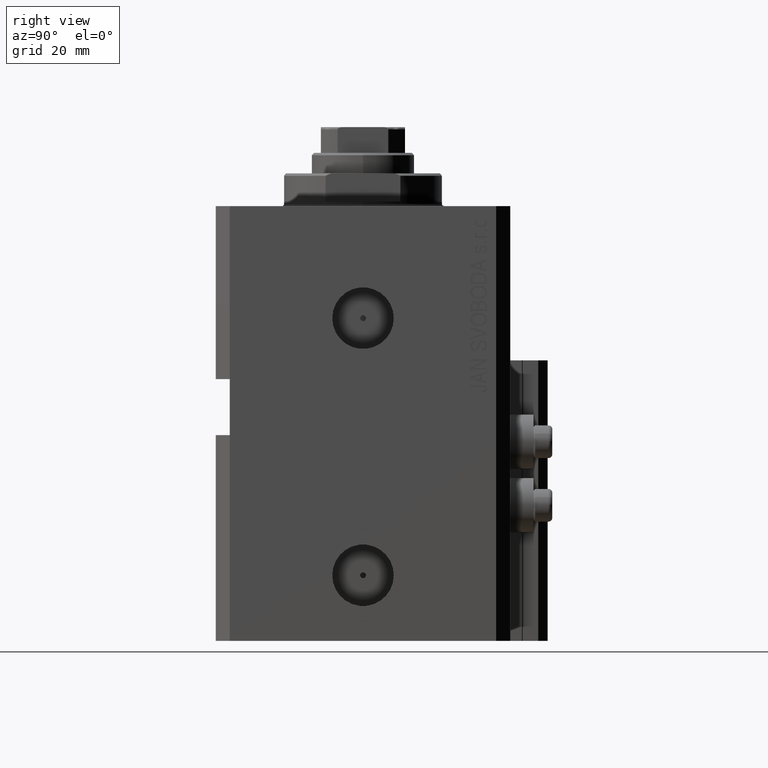
[diagram: clean part render]
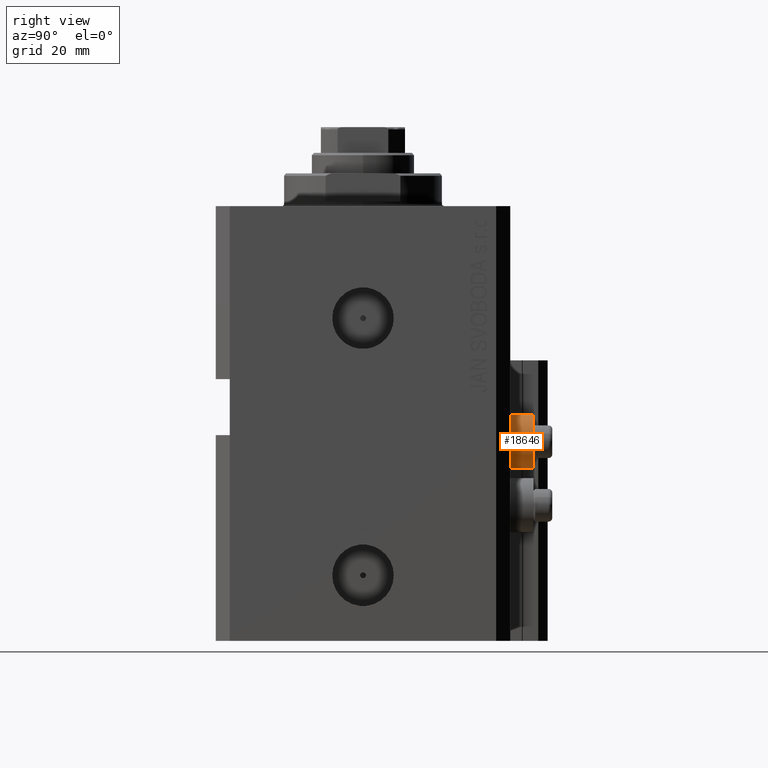
[diagram: same view with one face highlighted and labeled with its STEP entity id]
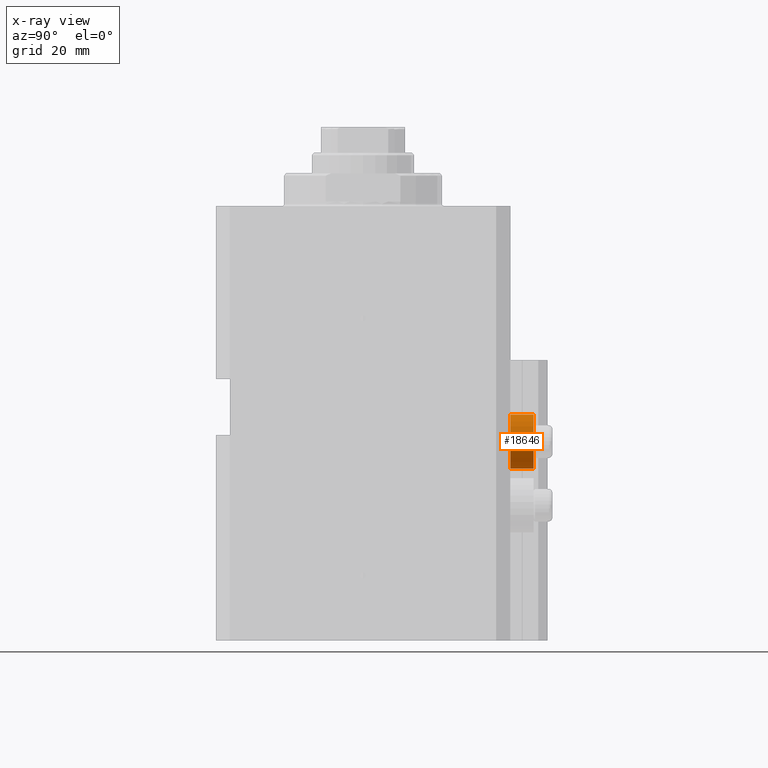
[diagram: x-ray of the same camera — body ghosted, the highlighted face saturated]
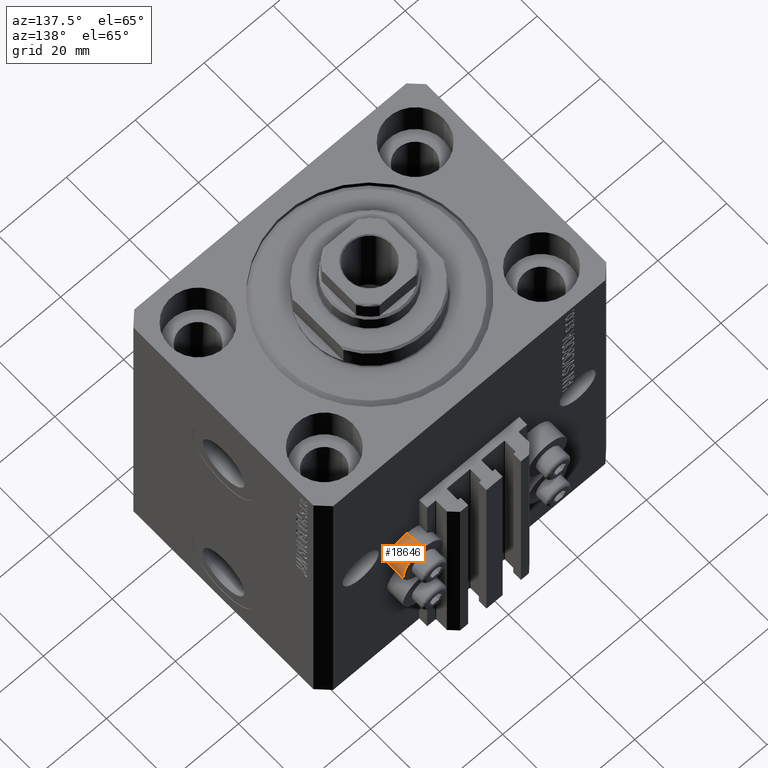
[diagram: same view with one face highlighted and labeled with its STEP entity id]
A machine part, right view. The second image highlights one B-rep face of the part: STEP entity #18646.
The next image is the same camera in x-ray: the body ghosted, the highlighted face saturated — about 0% of this face is hidden behind the body in this view.
A second angle (auxiliary view) of the same face is appended — the face is thin or edge-on in the first view.
In plain terms, the highlighted cylindrical surface (edge-blend (fillet) strip) has radius 5.8 mm, axis along (0, 1, 0).
Its self-contained STEP definition (entity closure, byte-faithful):
#86 = CYLINDRICAL_SURFACE ( 'NONE', #12255, 5.799999999999999822 ) ;
#891 = EDGE_CURVE ( 'NONE', #11539, #2558, #31812, .T. ) ;
#2558 = VERTEX_POINT ( 'NONE', #46730 ) ;
#5361 = DIRECTION ( 'NONE',  ( 0.000000000000000000, 0.000000000000000000, 1.000000000000000000 ) ) ;
#10110 = DIRECTION ( 'NONE',  ( 0.000000000000000000, 1.000000000000000000, 0.000000000000000000 ) ) ;
#10917 = LINE ( 'NONE', #24930, #18818 ) ;
#11539 = VERTEX_POINT ( 'NONE', #45692 ) ;
#11607 = ORIENTED_EDGE ( 'NONE', *, *, #17974, .F. ) ;
#12255 = AXIS2_PLACEMENT_3D ( 'NONE', #14787, #29485, #14314 ) ;
#12740 = CARTESIAN_POINT ( 'NONE',  ( 18.00000000000000355, 31.50000000000000000, -44.60000000000000142 ) ) ;
#13335 = EDGE_LOOP ( 'NONE', ( #11607, #44509, #42997, #40456 ) ) ;
#14314 = DIRECTION ( 'NONE',  ( 0.000000000000000000, 0.000000000000000000, 1.000000000000000000 ) ) ;
#14787 = CARTESIAN_POINT ( 'NONE',  ( 18.00000000000000355, 36.49999999996099120, -50.39999999999999858 ) ) ;
#17630 = DIRECTION ( 'NONE',  ( 0.000000000000000000, 0.000000000000000000, 1.000000000000000000 ) ) ;
#17974 = EDGE_CURVE ( 'NONE', #11539, #30922, #37599, .T. ) ;
#18646 = ADVANCED_FACE ( 'NONE', ( #33098 ), #86, .T. ) ;
#18818 = VECTOR ( 'NONE', #25631, 1000.000000000000000 ) ;
#24930 = CARTESIAN_POINT ( 'NONE',  ( 18.00000000000000355, 36.49999999996099120, -44.60000000000000142 ) ) ;
#25631 = DIRECTION ( 'NONE',  ( 0.000000000000000000, 1.000000000000000000, 0.000000000000000000 ) ) ;
#28661 = VERTEX_POINT ( 'NONE', #28777 ) ;
#28777 = CARTESIAN_POINT ( 'NONE',  ( 18.00000000000000355, 36.49999999996099120, -44.60000000000000142 ) ) ;
#29485 = DIRECTION ( 'NONE',  ( 0.000000000000000000, 1.000000000000000000, 0.000000000000000000 ) ) ;
#29647 = EDGE_CURVE ( 'NONE', #2558, #28661, #44776, .T. ) ;
#30922 = VERTEX_POINT ( 'NONE', #12740 ) ;
#31397 = DIRECTION ( 'NONE',  ( -0.000000000000000000, -1.000000000000000000, -0.000000000000000000 ) ) ;
#31812 = LINE ( 'NONE', #35650, #43726 ) ;
#33098 = FACE_OUTER_BOUND ( 'NONE', #13335, .T. ) ;
#35650 = CARTESIAN_POINT ( 'NONE',  ( 18.00000000000000355, 36.49999999996099120, -56.20000000000000284 ) ) ;
#36178 = DIRECTION ( 'NONE',  ( -0.000000000000000000, -1.000000000000000000, -0.000000000000000000 ) ) ;
#36365 = AXIS2_PLACEMENT_3D ( 'NONE', #38141, #31397, #5361 ) ;
#37599 = CIRCLE ( 'NONE', #40688, 5.799999999999999822 ) ;
#38141 = CARTESIAN_POINT ( 'NONE',  ( 18.00000000000000355, 36.49999999996099120, -50.39999999999999858 ) ) ;
#40320 = EDGE_CURVE ( 'NONE', #30922, #28661, #10917, .T. ) ;
#40456 = ORIENTED_EDGE ( 'NONE', *, *, #40320, .F. ) ;
#40688 = AXIS2_PLACEMENT_3D ( 'NONE', #46742, #36178, #17630 ) ;
#42997 = ORIENTED_EDGE ( 'NONE', *, *, #29647, .T. ) ;
#43726 = VECTOR ( 'NONE', #10110, 1000.000000000000000 ) ;
#44509 = ORIENTED_EDGE ( 'NONE', *, *, #891, .T. ) ;
#44776 = CIRCLE ( 'NONE', #36365, 5.799999999999999822 ) ;
#45692 = CARTESIAN_POINT ( 'NONE',  ( 18.00000000000000355, 31.50000000000000000, -56.20000000000000284 ) ) ;
#46730 = CARTESIAN_POINT ( 'NONE',  ( 18.00000000000000355, 36.49999999996099120, -56.20000000000000284 ) ) ;
#46742 = CARTESIAN_POINT ( 'NONE',  ( 18.00000000000000355, 31.50000000000000000, -50.39999999999999858 ) ) ;